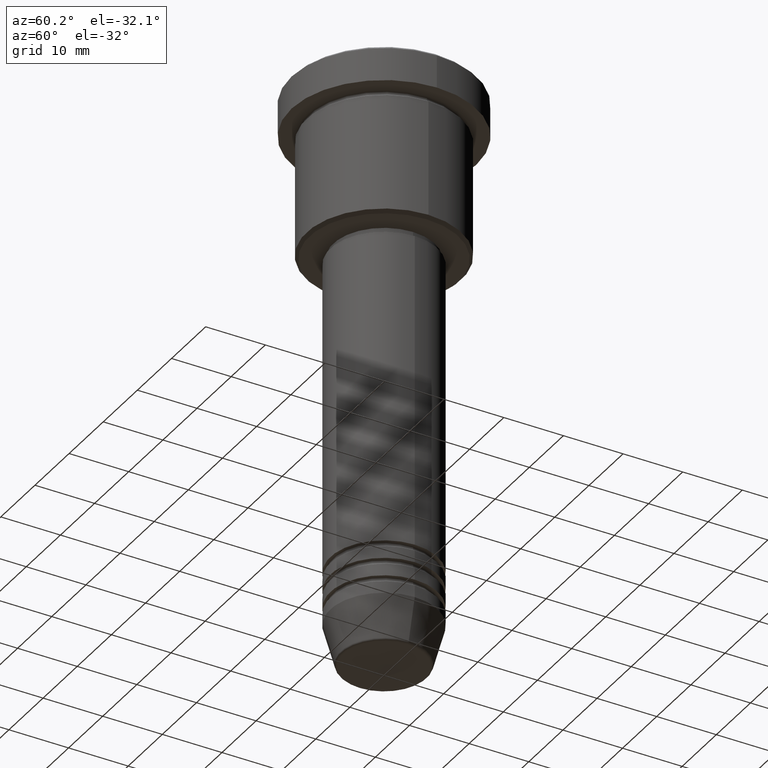
[diagram: clean part render]
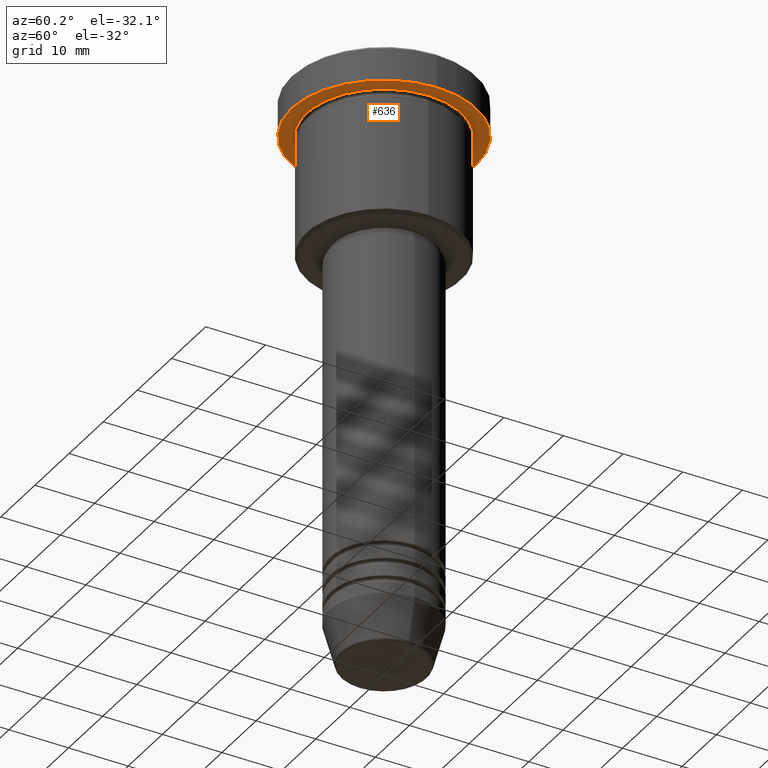
[diagram: same view with one face highlighted and labeled with its STEP entity id]
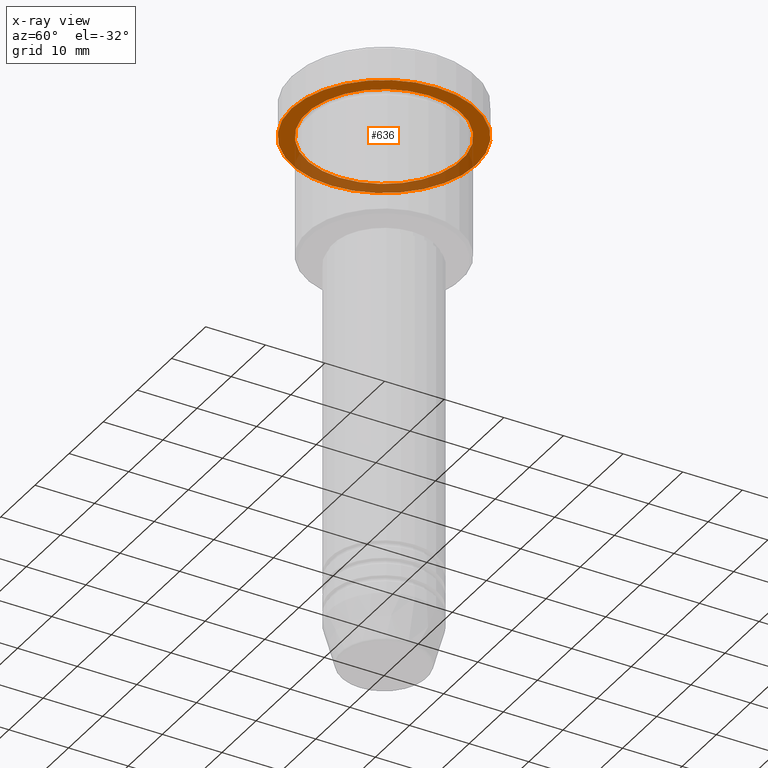
[diagram: x-ray of the same camera — body ghosted, the highlighted face saturated]
A machine part, auxiliary view. The second image highlights one B-rep face of the part: STEP entity #636.
The next image is the same camera in x-ray: the body ghosted, the highlighted face saturated — about 35% of this face is hidden behind the body in this view.
In plain terms, the highlighted planar face has unit normal (0, 0, -1).
Its self-contained STEP definition (entity closure, byte-faithful):
#18 = DIRECTION ( 'NONE',  ( -0.000000000000000000, -0.000000000000000000, 1.000000000000000000 ) ) ;
#103 = PLANE ( 'NONE',  #930 ) ;
#113 = DIRECTION ( 'NONE',  ( -1.000000000000000000, 0.000000000000000000, 0.000000000000000000 ) ) ;
#134 = VERTEX_POINT ( 'NONE', #501 ) ;
#192 = FACE_OUTER_BOUND ( 'NONE', #1140, .T. ) ;
#221 = EDGE_CURVE ( 'NONE', #134, #1050, #532, .T. ) ;
#246 = ORIENTED_EDGE ( 'NONE', *, *, #520, .F. ) ;
#296 = CARTESIAN_POINT ( 'NONE',  ( 0.000000000000000000, 15.50000000000000000, -5.999999999999995559 ) ) ;
#329 = CARTESIAN_POINT ( 'NONE',  ( 0.000000000000000000, 0.000000000000000000, -5.999999999999995559 ) ) ;
#335 = VERTEX_POINT ( 'NONE', #1065 ) ;
#395 = AXIS2_PLACEMENT_3D ( 'NONE', #449, #977, #808 ) ;
#413 = CIRCLE ( 'NONE', #644, 13.00000000000000000 ) ;
#449 = CARTESIAN_POINT ( 'NONE',  ( 0.000000000000000000, 0.000000000000000000, -5.999999999999995559 ) ) ;
#480 = CARTESIAN_POINT ( 'NONE',  ( 0.000000000000000000, 0.000000000000000000, -5.999999999999995559 ) ) ;
#501 = CARTESIAN_POINT ( 'NONE',  ( -13.00000000000000000, 0.000000000000000000, -5.999999999999994671 ) ) ;
#520 = EDGE_CURVE ( 'NONE', #335, #1142, #573, .T. ) ;
#532 = CIRCLE ( 'NONE', #789, 13.00000000000000000 ) ;
#538 = EDGE_CURVE ( 'NONE', #1142, #335, #1007, .T. ) ;
#573 = CIRCLE ( 'NONE', #395, 15.50000000000000000 ) ;
#591 = ORIENTED_EDGE ( 'NONE', *, *, #538, .F. ) ;
#635 = DIRECTION ( 'NONE',  ( -0.000000000000000000, -0.000000000000000000, 1.000000000000000000 ) ) ;
#636 = ADVANCED_FACE ( 'NONE', ( #728, #192 ), #103, .T. ) ;
#644 = AXIS2_PLACEMENT_3D ( 'NONE', #329, #1070, #861 ) ;
#663 = EDGE_CURVE ( 'NONE', #1050, #134, #413, .T. ) ;
#668 = DIRECTION ( 'NONE',  ( -1.000000000000000000, 0.000000000000000000, -0.000000000000000000 ) ) ;
#728 = FACE_BOUND ( 'NONE', #779, .T. ) ;
#779 = EDGE_LOOP ( 'NONE', ( #1153, #970 ) ) ;
#782 = CARTESIAN_POINT ( 'NONE',  ( 13.00000000000000000, 1.592040838891559095E-15, -5.999999999999994671 ) ) ;
#789 = AXIS2_PLACEMENT_3D ( 'NONE', #480, #18, #113 ) ;
#808 = DIRECTION ( 'NONE',  ( 1.000000000000000000, 0.000000000000000000, 0.000000000000000000 ) ) ;
#861 = DIRECTION ( 'NONE',  ( -1.000000000000000000, 0.000000000000000000, 0.000000000000000000 ) ) ;
#898 = CARTESIAN_POINT ( 'NONE',  ( 15.50000000000000000, 0.000000000000000000, -5.999999999999995559 ) ) ;
#930 = AXIS2_PLACEMENT_3D ( 'NONE', #296, #1138, #668 ) ;
#970 = ORIENTED_EDGE ( 'NONE', *, *, #663, .T. ) ;
#977 = DIRECTION ( 'NONE',  ( -0.000000000000000000, -0.000000000000000000, 1.000000000000000000 ) ) ;
#995 = DIRECTION ( 'NONE',  ( 1.000000000000000000, 0.000000000000000000, 0.000000000000000000 ) ) ;
#1007 = CIRCLE ( 'NONE', #1125, 15.50000000000000000 ) ;
#1050 = VERTEX_POINT ( 'NONE', #782 ) ;
#1065 = CARTESIAN_POINT ( 'NONE',  ( -15.50000000000000000, 1.898202538678397557E-15, -5.999999999999995559 ) ) ;
#1070 = DIRECTION ( 'NONE',  ( -0.000000000000000000, -0.000000000000000000, 1.000000000000000000 ) ) ;
#1125 = AXIS2_PLACEMENT_3D ( 'NONE', #1182, #635, #995 ) ;
#1138 = DIRECTION ( 'NONE',  ( 0.000000000000000000, 0.000000000000000000, -1.000000000000000000 ) ) ;
#1140 = EDGE_LOOP ( 'NONE', ( #591, #246 ) ) ;
#1142 = VERTEX_POINT ( 'NONE', #898 ) ;
#1153 = ORIENTED_EDGE ( 'NONE', *, *, #221, .T. ) ;
#1182 = CARTESIAN_POINT ( 'NONE',  ( 0.000000000000000000, 0.000000000000000000, -5.999999999999995559 ) ) ;